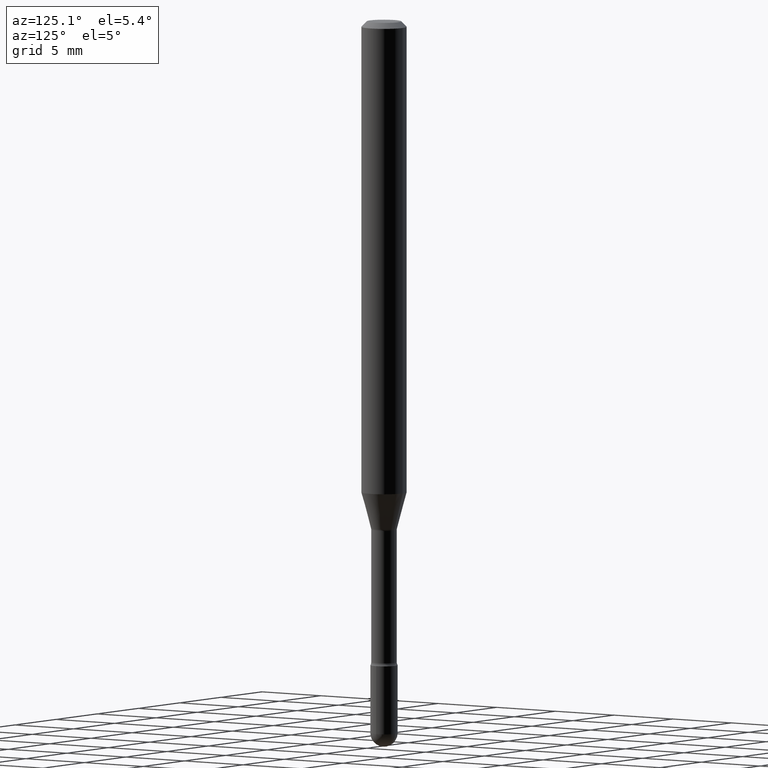
[diagram: clean part render]
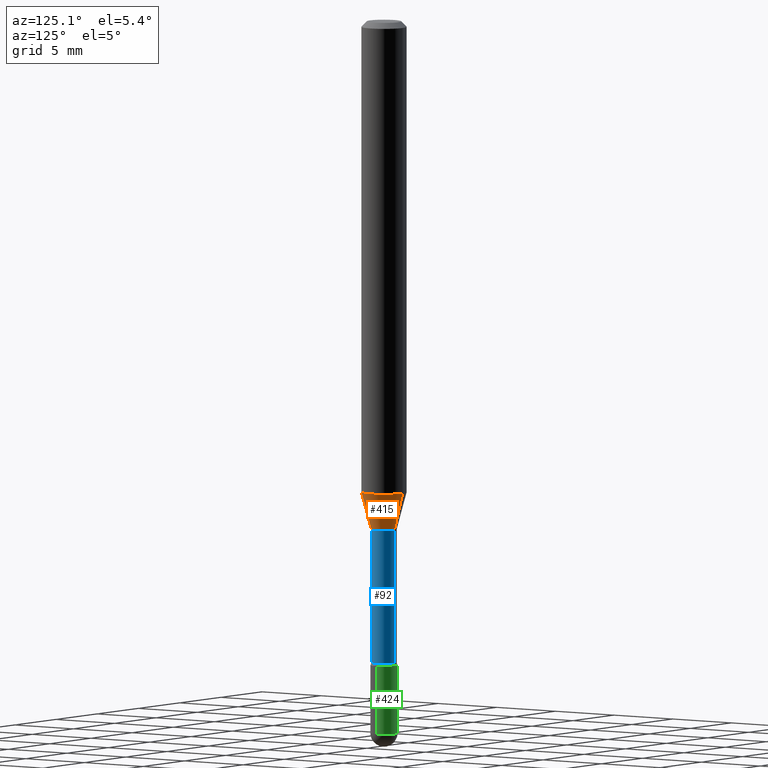
[diagram: same view with three faces highlighted in distinct colors, each labeled with its STEP entity id]
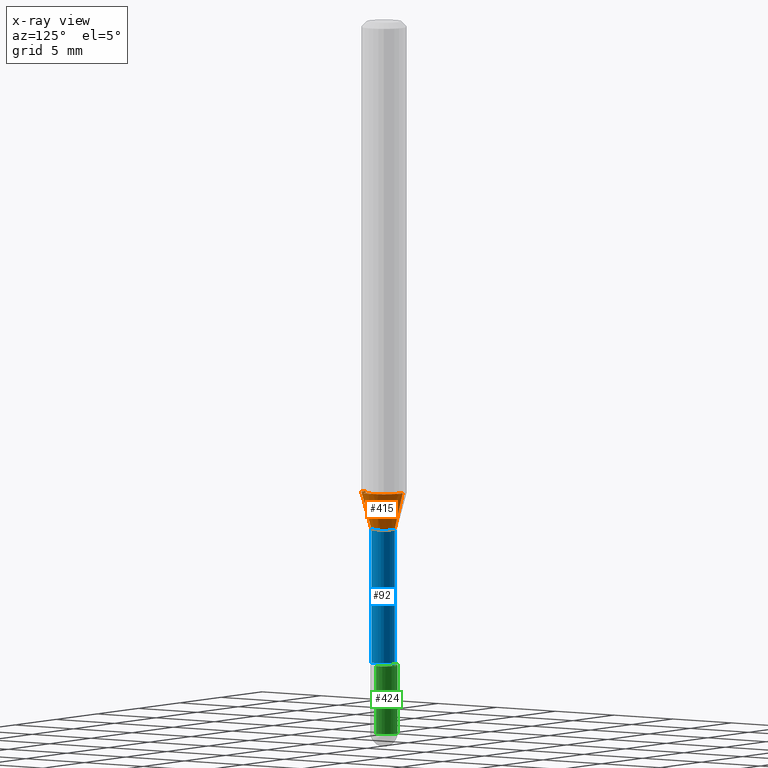
[diagram: x-ray of the same camera — body ghosted, the three highlighted faces saturated]
A machine part, auxiliary view with three faces highlighted in distinct colors.
The next image is the same camera in x-ray (body ghosted, the three faces saturated) — at least one of them is partly hidden behind the body in this view.
Their STEP definitions:

[orange] entity #415 — the highlighted conical surface has half-angle 15 deg.
#12 = DIRECTION ( 'NONE',  ( -2.445465254371968142E-29, 3.491486425241759553E-15, 1.000000000000000000 ) ) ;
#27 = DIRECTION ( 'NONE',  ( -2.445465254371968142E-29, 3.491486425241759553E-15, 1.000000000000000000 ) ) ;
#42 = VERTEX_POINT ( 'NONE', #557 ) ;
#57 = CIRCLE ( 'NONE', #175, 0.06250000000000000000 ) ;
#63 = EDGE_CURVE ( 'NONE', #42, #505, #57, .T. ) ;
#75 = CARTESIAN_POINT ( 'NONE',  ( 3.490935988483317697E-16, 0.03576111260565909694, -1.398092501787273179 ) ) ;
#76 = CARTESIAN_POINT ( 'NONE',  ( 4.440892098500940720E-16, 0.06249999999999543421, -1.298301615493748562 ) ) ;
#103 = CARTESIAN_POINT ( 'NONE',  ( -2.497185146378532502E-16, -0.03576111260566886690, -1.398092501787273179 ) ) ;
#122 = ORIENTED_EDGE ( 'NONE', *, *, #257, .T. ) ;
#136 = EDGE_CURVE ( 'NONE', #482, #209, #539, .T. ) ;
#175 = AXIS2_PLACEMENT_3D ( 'NONE', #513, #27, #422 ) ;
#182 = DIRECTION ( 'NONE',  ( -6.982962677686266711E-15, -1.000000000000000000, 0.000000000000000000 ) ) ;
#199 = LINE ( 'NONE', #525, #393 ) ;
#209 = VERTEX_POINT ( 'NONE', #75 ) ;
#226 = FACE_OUTER_BOUND ( 'NONE', #552, .T. ) ;
#231 = AXIS2_PLACEMENT_3D ( 'NONE', #413, #411, #285 ) ;
#254 = ORIENTED_EDGE ( 'NONE', *, *, #326, .F. ) ;
#257 = EDGE_CURVE ( 'NONE', #209, #505, #199, .T. ) ;
#272 = VECTOR ( 'NONE', #442, 39.37007874015748143 ) ;
#285 = DIRECTION ( 'NONE',  ( -6.982962677686266711E-15, -1.000000000000000000, 0.000000000000000000 ) ) ;
#304 = ORIENTED_EDGE ( 'NONE', *, *, #63, .F. ) ;
#318 = CARTESIAN_POINT ( 'NONE',  ( -2.497185146378532502E-16, -0.03576111260566886690, -1.398092501787273179 ) ) ;
#326 = EDGE_CURVE ( 'NONE', #482, #42, #436, .T. ) ;
#366 = AXIS2_PLACEMENT_3D ( 'NONE', #526, #12, #182 ) ;
#393 = VECTOR ( 'NONE', #426, 39.37007874015748854 ) ;
#411 = DIRECTION ( 'NONE',  ( -2.445465254371968142E-29, 3.491486425241759553E-15, 1.000000000000000000 ) ) ;
#413 = CARTESIAN_POINT ( 'NONE',  ( 3.418986635518755214E-29, -4.881420991222554708E-15, -1.398092501787273179 ) ) ;
#415 = ADVANCED_FACE ( 'NONE', ( #226 ), #476, .T. ) ;
#422 = DIRECTION ( 'NONE',  ( -6.982962677686265922E-15, -1.000000000000000000, 4.370956789862821150E-15 ) ) ;
#426 = DIRECTION ( 'NONE',  ( 1.839019923739597554E-15, 0.2588190451025245697, 0.9659258262890670910 ) ) ;
#436 = LINE ( 'NONE', #318, #272 ) ;
#442 = DIRECTION ( 'NONE',  ( -1.807323732225327773E-15, -0.2588190451025178529, 0.9659258262890690894 ) ) ;
#476 = CONICAL_SURFACE ( 'NONE', #366, 0.03576111260566398192, 0.2617993877991499074 ) ;
#482 = VERTEX_POINT ( 'NONE', #103 ) ;
#501 = ORIENTED_EDGE ( 'NONE', *, *, #136, .T. ) ;
#505 = VERTEX_POINT ( 'NONE', #76 ) ;
#513 = CARTESIAN_POINT ( 'NONE',  ( 3.174951490384956407E-29, -4.533002466365868923E-15, -1.298301615493748340 ) ) ;
#525 = CARTESIAN_POINT ( 'NONE',  ( 2.540979878465690730E-16, 0.03576111260565909694, -1.398092501787273179 ) ) ;
#526 = CARTESIAN_POINT ( 'NONE',  ( 3.418986635518755214E-29, -4.881420991222554708E-15, -1.398092501787273179 ) ) ;
#539 = CIRCLE ( 'NONE', #231, 0.03576111260566398192 ) ;
#552 = EDGE_LOOP ( 'NONE', ( #501, #122, #304, #254 ) ) ;
#557 = CARTESIAN_POINT ( 'NONE',  ( -4.364351673553601150E-16, -0.06250000000000456579, -1.298301615493748118 ) ) ;

[blue] entity #92 — the highlighted cylindrical surface (edge-blend (fillet) strip) has radius 0.8954 mm, axis along (-0, 0, 1).
#5 = AXIS2_PLACEMENT_3D ( 'NONE', #454, #37, #512 ) ;
#15 = CARTESIAN_POINT ( 'NONE',  ( -2.461494343883982794E-16, -0.03525000000000625550, -1.767098259685360384 ) ) ;
#16 = CARTESIAN_POINT ( 'NONE',  ( -1.169113584055446105E-44, 1.669184350826100908E-30, 4.780733988912460139E-16 ) ) ;
#24 = DIRECTION ( 'NONE',  ( -2.445465254371968142E-29, 3.491486425241759553E-15, 1.000000000000000000 ) ) ;
#32 = DIRECTION ( 'NONE',  ( -2.445465254371968142E-29, 3.491486425241759553E-15, 1.000000000000000000 ) ) ;
#37 = DIRECTION ( 'NONE',  ( -2.445465254371968142E-29, 3.491486425241759553E-15, 1.000000000000000000 ) ) ;
#48 = VERTEX_POINT ( 'NONE', #433 ) ;
#64 = LINE ( 'NONE', #565, #531 ) ;
#77 = VERTEX_POINT ( 'NONE', #500 ) ;
#92 = ADVANCED_FACE ( 'NONE', ( #327 ), #277, .T. ) ;
#142 = EDGE_LOOP ( 'NONE', ( #176, #416, #262, #376 ) ) ;
#176 = ORIENTED_EDGE ( 'NONE', *, *, #191, .T. ) ;
#177 = VECTOR ( 'NONE', #24, 39.37007874015748143 ) ;
#191 = EDGE_CURVE ( 'NONE', #349, #48, #246, .T. ) ;
#206 = DIRECTION ( 'NONE',  ( -6.982962677686266711E-15, -1.000000000000000000, 3.491486425241760737E-15 ) ) ;
#244 = VERTEX_POINT ( 'NONE', #339 ) ;
#246 = CIRCLE ( 'NONE', #5, 0.03525000000000008682 ) ;
#247 = CARTESIAN_POINT ( 'NONE',  ( 3.428480630248274959E-29, -4.894975938961098248E-15, -1.401974787463811101 ) ) ;
#262 = ORIENTED_EDGE ( 'NONE', *, *, #503, .F. ) ;
#277 = CYLINDRICAL_SURFACE ( 'NONE', #309, 0.03525000000000003825 ) ;
#293 = DIRECTION ( 'NONE',  ( -2.445465254371968142E-29, 3.491486425241759553E-15, 1.000000000000000000 ) ) ;
#299 = AXIS2_PLACEMENT_3D ( 'NONE', #247, #293, #431 ) ;
#309 = AXIS2_PLACEMENT_3D ( 'NONE', #16, #361, #206 ) ;
#327 = FACE_OUTER_BOUND ( 'NONE', #142, .T. ) ;
#339 = CARTESIAN_POINT ( 'NONE',  ( -2.461494343884065624E-16, -0.03525000000000488853, -1.401974787463811101 ) ) ;
#349 = VERTEX_POINT ( 'NONE', #15 ) ;
#361 = DIRECTION ( 'NONE',  ( -2.445465254371968142E-29, 3.491486425241759553E-15, 1.000000000000000000 ) ) ;
#376 = ORIENTED_EDGE ( 'NONE', *, *, #553, .F. ) ;
#414 = CARTESIAN_POINT ( 'NONE',  ( -2.461494343884411737E-16, -0.03525000000000003825, 6.011482953810182667E-16 ) ) ;
#416 = ORIENTED_EDGE ( 'NONE', *, *, #457, .T. ) ;
#431 = DIRECTION ( 'NONE',  ( -6.982962677686265133E-15, -1.000000000000000000, 0.000000000000000000 ) ) ;
#433 = CARTESIAN_POINT ( 'NONE',  ( 2.584599201327800595E-16, 0.03524999999999392508, -1.767098259685360384 ) ) ;
#454 = CARTESIAN_POINT ( 'NONE',  ( 4.321377395121722522E-29, -6.169799585759774289E-15, -1.767098259685360384 ) ) ;
#457 = EDGE_CURVE ( 'NONE', #48, #77, #64, .T. ) ;
#500 = CARTESIAN_POINT ( 'NONE',  ( 2.504663143554786788E-16, 0.03524999999999509775, -1.401974787463811101 ) ) ;
#503 = EDGE_CURVE ( 'NONE', #244, #77, #549, .T. ) ;
#512 = DIRECTION ( 'NONE',  ( -6.982962677686266711E-15, -1.000000000000000000, 0.000000000000000000 ) ) ;
#531 = VECTOR ( 'NONE', #32, 39.37007874015748143 ) ;
#542 = LINE ( 'NONE', #414, #177 ) ;
#549 = CIRCLE ( 'NONE', #299, 0.03524999999999999661 ) ;
#553 = EDGE_CURVE ( 'NONE', #349, #244, #542, .T. ) ;
#565 = CARTESIAN_POINT ( 'NONE',  ( 2.504663143554355873E-16, 0.03525000000000003825, 3.549985024014739091E-16 ) ) ;

[green] entity #424 — the highlighted cylindrical surface (edge-blend (fillet) strip) has radius 0.9525 mm, axis along (-0, 0, 1).
#10 = EDGE_CURVE ( 'NONE', #396, #169, #560, .T. ) ;
#51 = ORIENTED_EDGE ( 'NONE', *, *, #80, .T. ) ;
#58 = AXIS2_PLACEMENT_3D ( 'NONE', #559, #208, #471 ) ;
#80 = EDGE_CURVE ( 'NONE', #169, #294, #107, .T. ) ;
#105 = CYLINDRICAL_SURFACE ( 'NONE', #140, 0.03749999999999999861 ) ;
#107 = LINE ( 'NONE', #408, #151 ) ;
#110 = CARTESIAN_POINT ( 'NONE',  ( 0.03749999999999999861, -2.618611004132350016E-16, 1.828566290923475922E-30 ) ) ;
#120 = VECTOR ( 'NONE', #283, 39.37007874015748143 ) ;
#126 = DIRECTION ( 'NONE',  ( 1.000000000000000000, -6.982962677686268288E-15, 0.000000000000000000 ) ) ;
#128 = EDGE_LOOP ( 'NONE', ( #159, #51, #134, #213, #507 ) ) ;
#134 = ORIENTED_EDGE ( 'NONE', *, *, #236, .F. ) ;
#140 = AXIS2_PLACEMENT_3D ( 'NONE', #269, #444, #323 ) ;
#151 = VECTOR ( 'NONE', #541, 39.37007874015748143 ) ;
#152 = AXIS2_PLACEMENT_3D ( 'NONE', #344, #515, #126 ) ;
#159 = ORIENTED_EDGE ( 'NONE', *, *, #10, .T. ) ;
#160 = LINE ( 'NONE', #110, #120 ) ;
#169 = VERTEX_POINT ( 'NONE', #459 ) ;
#174 = CARTESIAN_POINT ( 'NONE',  ( 0.03749999999999999861, -6.459240476859818795E-15, -1.775000000000000133 ) ) ;
#185 = CARTESIAN_POINT ( 'NONE',  ( 4.799232532138329338E-29, -6.852032127479672087E-15, -1.962499999999999689 ) ) ;
#187 = EDGE_CURVE ( 'NONE', #561, #514, #160, .T. ) ;
#208 = DIRECTION ( 'NONE',  ( -2.445468806185136597E-29, 3.491481338843145583E-15, 1.000000000000000000 ) ) ;
#213 = ORIENTED_EDGE ( 'NONE', *, *, #187, .F. ) ;
#218 = CARTESIAN_POINT ( 'NONE',  ( -0.03749999999999999861, -6.258252226053091317E-15, -1.775000000000000133 ) ) ;
#236 = EDGE_CURVE ( 'NONE', #514, #294, #521, .T. ) ;
#269 = CARTESIAN_POINT ( 'NONE',  ( 0.000000000000000000, 0.000000000000000000, 0.000000000000000000 ) ) ;
#283 = DIRECTION ( 'NONE',  ( -2.445468806185136877E-29, 3.491481338843145188E-15, 1.000000000000000000 ) ) ;
#294 = VERTEX_POINT ( 'NONE', #218 ) ;
#315 = DIRECTION ( 'NONE',  ( 1.000000000000000000, -6.982962677686268288E-15, 0.000000000000000000 ) ) ;
#323 = DIRECTION ( 'NONE',  ( 1.000000000000000000, -6.982962677686266711E-15, 4.876176775795935793E-29 ) ) ;
#344 = CARTESIAN_POINT ( 'NONE',  ( 4.340707130978617347E-29, -6.197379376446583794E-15, -1.775000000000000133 ) ) ;
#355 = CARTESIAN_POINT ( 'NONE',  ( 0.03749999999999999861, -6.786566852376363731E-15, -1.962499999999999689 ) ) ;
#396 = VERTEX_POINT ( 'NONE', #487 ) ;
#408 = CARTESIAN_POINT ( 'NONE',  ( -0.03749999999999999861, 2.664535259100375598E-16, -1.844600658845589808E-30 ) ) ;
#424 = ADVANCED_FACE ( 'NONE', ( #494 ), #105, .T. ) ;
#438 = CIRCLE ( 'NONE', #58, 0.03749999999999999861 ) ;
#444 = DIRECTION ( 'NONE',  ( -2.445468806185136597E-29, 3.491481338843145583E-15, 1.000000000000000000 ) ) ;
#459 = CARTESIAN_POINT ( 'NONE',  ( -0.03749999999999999861, -6.258252226053091317E-15, -1.962499999999999689 ) ) ;
#471 = DIRECTION ( 'NONE',  ( 1.000000000000000000, -6.982962677686268288E-15, 0.000000000000000000 ) ) ;
#485 = AXIS2_PLACEMENT_3D ( 'NONE', #185, #489, #315 ) ;
#487 = CARTESIAN_POINT ( 'NONE',  ( 2.618611004132830729E-16, 0.03749999999999317074, -1.962499999999999689 ) ) ;
#489 = DIRECTION ( 'NONE',  ( -2.445468806185136597E-29, 3.491481338843145583E-15, 1.000000000000000000 ) ) ;
#494 = FACE_OUTER_BOUND ( 'NONE', #128, .T. ) ;
#507 = ORIENTED_EDGE ( 'NONE', *, *, #520, .T. ) ;
#514 = VERTEX_POINT ( 'NONE', #174 ) ;
#515 = DIRECTION ( 'NONE',  ( -2.445468806185136597E-29, 3.491481338843145583E-15, 1.000000000000000000 ) ) ;
#520 = EDGE_CURVE ( 'NONE', #561, #396, #438, .T. ) ;
#521 = CIRCLE ( 'NONE', #152, 0.03749999999999999861 ) ;
#541 = DIRECTION ( 'NONE',  ( -2.445468806185136877E-29, 3.491481338843145188E-15, 1.000000000000000000 ) ) ;
#559 = CARTESIAN_POINT ( 'NONE',  ( 4.799232532138329338E-29, -6.852032127479672087E-15, -1.962499999999999689 ) ) ;
#560 = CIRCLE ( 'NONE', #485, 0.03749999999999999861 ) ;
#561 = VERTEX_POINT ( 'NONE', #355 ) ;